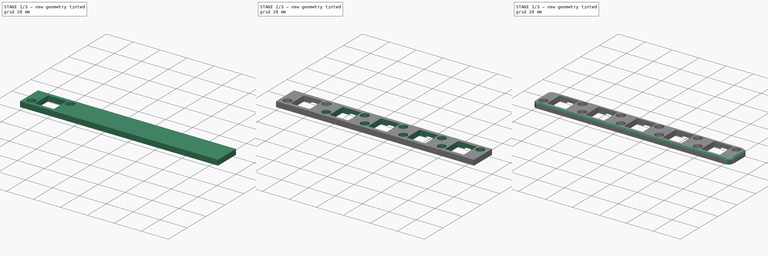
[diagram: build sequence overview — one tinted view per stage of 3, left to right]
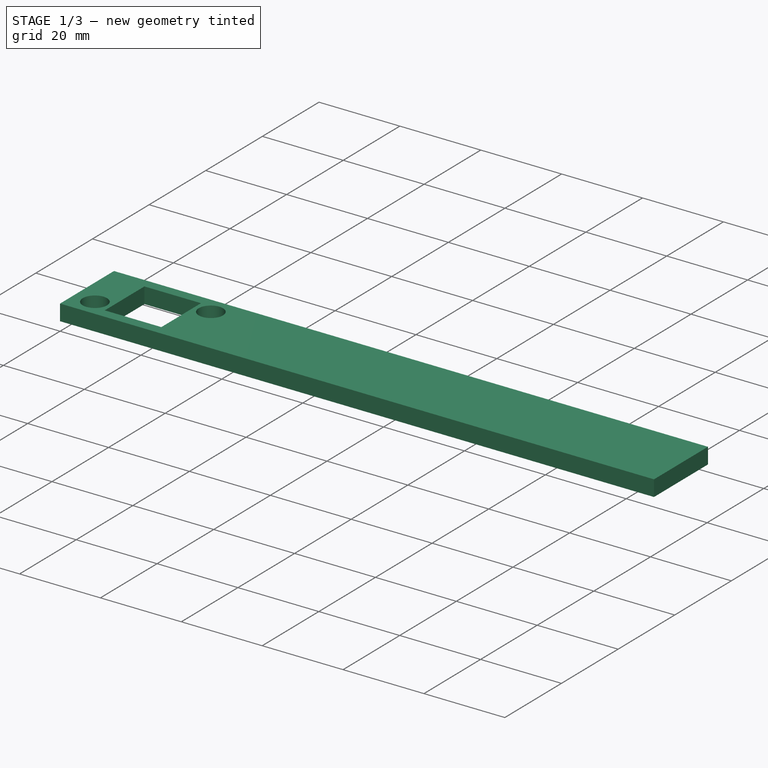
[diagram: stage 1 of 3 — iso view after this stage's code; geometry added in this stage tinted green]
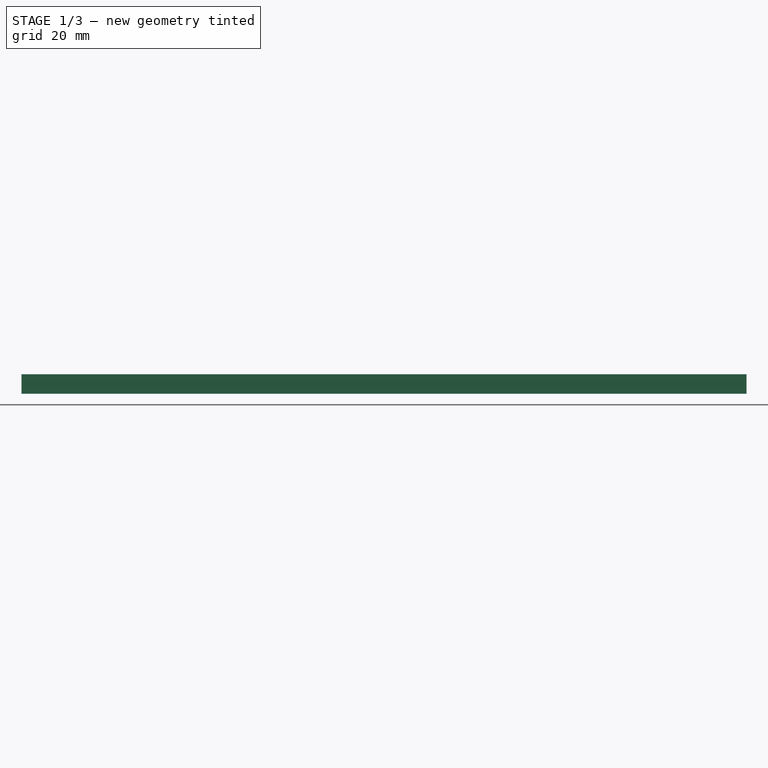
[diagram: stage 1 of 3 — front view after this stage's code; geometry added in this stage tinted green]
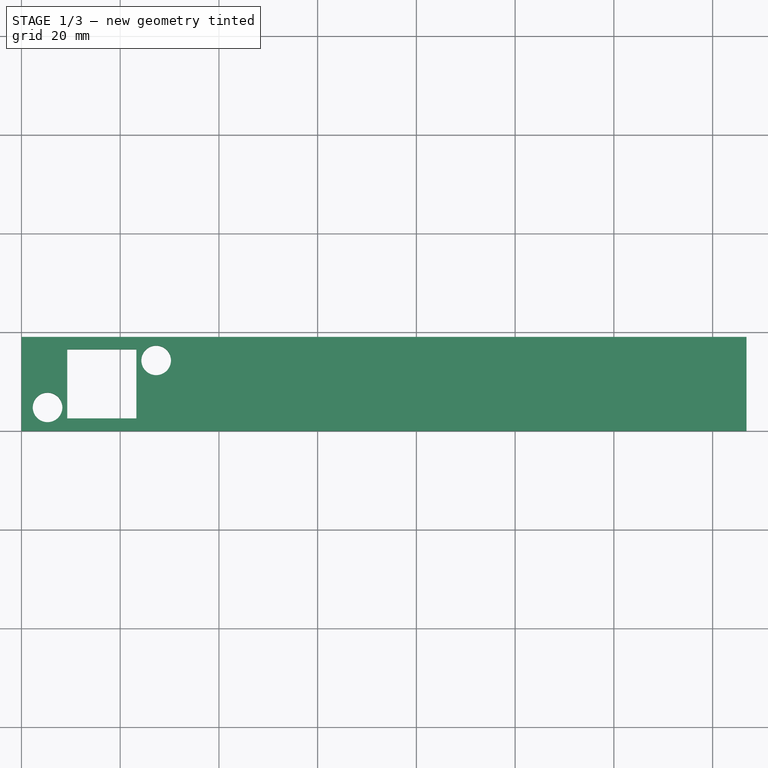
[diagram: stage 1 of 3 — top view after this stage's code; geometry added in this stage tinted green]
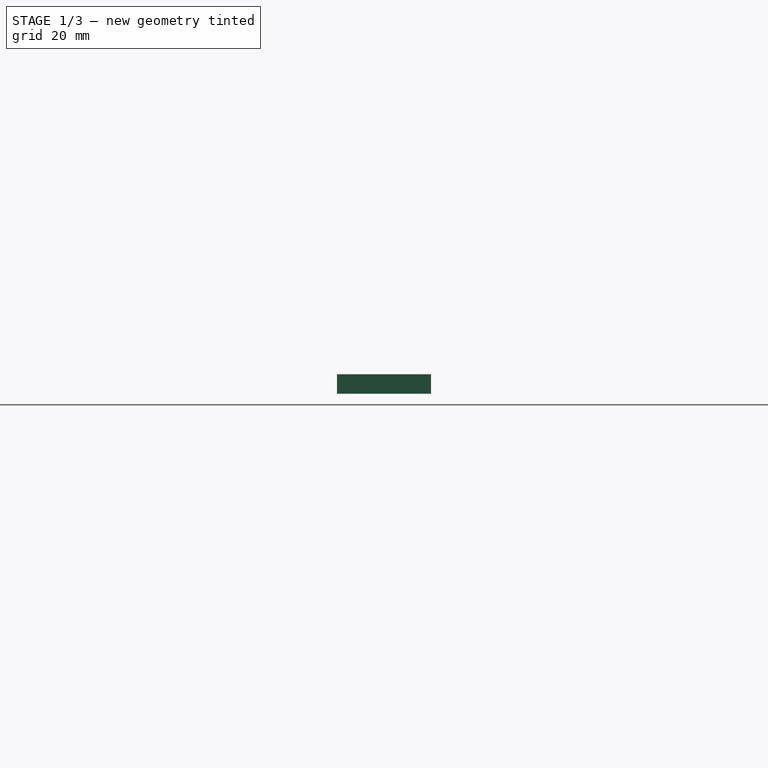
[diagram: stage 1 of 3 — right view after this stage's code; geometry added in this stage tinted green]
FCSTD DOCUMENT  (FreeCAD 0.21R33771 (Git))
Label: LowProPlate
License: All rights reserved
LicenseURL: http://en.wikipedia.org/wiki/All_rights_reserved
objects: Sketcher::SketchObject×2, PartDesign::Pocket×2, PartDesign::FeaturePython×2, PartDesign::AdditiveBox×1, Part::Part2DObjectPython×1, PartDesign::Fillet×1, PartDesign::Chamfer×1, PartDesign::Body×1, App::Part×1
note: 16 computed .brp shape members not serialized (recipe doc carries the construction recipe); baked Part::Feature solids carry a one-line shape summary decoded from their .brp

FEATURE [PartDesign::AdditiveBox] Box  label="BaseBox"
  AttacherType = Attacher::AttachEngine3D
  Height = 3.95
  Length = 146.875
  Width = 19.05
  expr: Length = 19.05 * 1.5 * 5 + 4
FEATURE [Sketcher::SketchObject] Sketch002  label="SingleFootprintSketch"
  ExternalGeometry = -> [Box]
  FullyConstrained = true
  MapMode = 5
  Placement = pos=(0,0,3.95) rot=(0,0,1;0rad)
  Support = -> [Box]
  expr: Constraints[21] = 19.05 * 1.5 / 2 + 2
  sketch-geometry (9):
    g0: LineSegment StartX=9.2875 StartY=16.525 StartZ=0 EndX=23.2875 EndY=16.525 EndZ=0
    g1: LineSegment StartX=23.2875 StartY=16.525 StartZ=0 EndX=23.2875 EndY=2.525 EndZ=0
    g2: LineSegment StartX=23.2875 StartY=2.525 StartZ=0 EndX=9.2875 EndY=2.525 EndZ=0
    g3: LineSegment StartX=9.2875 StartY=2.525 StartZ=0 EndX=9.2875 EndY=16.525 EndZ=0
    g4: GeomPoint X=16.2875 Y=9.525 Z=0
    g5: Circle CenterX=5.2875 CenterY=4.7625 CenterZ=0 NormalX=0 NormalY=0 NormalZ=1 AngleXU=0 Radius=3
    g6: Circle CenterX=27.2875 CenterY=14.2875 CenterZ=0 NormalX=0 NormalY=0 NormalZ=1 AngleXU=0 Radius=3
    g7: LineSegment StartX=0 StartY=19.05 StartZ=0 EndX=16.2875 EndY=9.525 EndZ=0
    g8: LineSegment StartX=16.2875 StartY=9.525 StartZ=0 EndX=0 EndY=0 EndZ=0
  constraints (22):
    c: Coincident(g0,g1)
    c: Coincident(g1,g2)
    c: Coincident(g2,g3)
    c: Coincident(g3,g0)
    c: Horizontal(g0)
    c: Horizontal(g2)
    c: Vertical(g1)
    c: Vertical(g3)
    c: DistanceX(g0,g0) = 14
    c: Symmetric(g2,g0,g4)
    c: Radius(g5) = 3
    c: Equal(g6,g5)
    c: Equal(g0,g1)
    c: Symmetric(g5,g6,g4)
    c: DistanceY(g4,g6) = 4.7625
    c: DistanceX(g4,g6) = 11
    c: Coincident(g7,g-3)
    c: Coincident(g7,g4)
    c: Coincident(g8,g4)
    c: Coincident(g8,g-1)
    c: Equal(g8,g7)
    c: DistanceX(g8,g4) = 16.2875
FEATURE [Part::Part2DObjectPython] LinearArray  label="FootprintArray"  # Draft 2D object (typed FeaturePython)
  Alignment = 0
  AttacherType = Attacher::AttachEngine3D
  CellStart = A1
  Count = 5
  Dir = (1,0,0)
  DirIsDriven = true
  DistributionLaw = 0
  DrivenProperty = 1
  EndInclusive = true
  ExposePlacement = false
  GeneratorMode = 1
  Link = -> Box
  LinkSubelement = Edge10
  MarkerShape = 1
  MarkerSize = 0
  NumElements = 5
  OrientMode = 1
  Point = (0,0,3.95)
  PointIsDriven = true
  Reverse = false
  SpanEnd = 146.875
  SpanStart = 0
  Step = 28.575
  SubLink = -> Box [Edge10]
  Type = lattice2LinearArray.LinearArray
  VSGVersion = 1
  Values = 0.0 | 28.575000000000003 | 57.150000000000006 | 85.72500000000001 | 114.30000000000001
  ValuesSource = 2
  isLattice = 1
  expr: Step = 19.05 * 1.5
FEATURE [PartDesign::Pocket] Pocket001  label="FootprintPocket"
  BaseFeature = -> Box
  Direction = (0,0,-1)
  Length = 5
  Length2 = 5
  Profile = -> Sketch002
  ReferenceAxis = -> Sketch002 [N_Axis]
  Type = 1
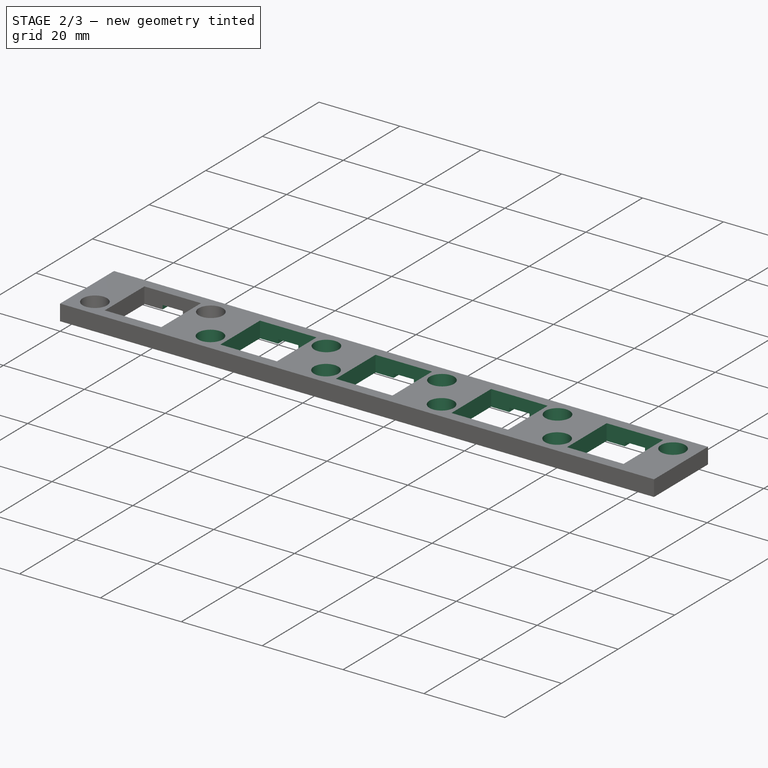
[diagram: stage 2 of 3 — iso view after this stage's code; geometry added in this stage tinted green]
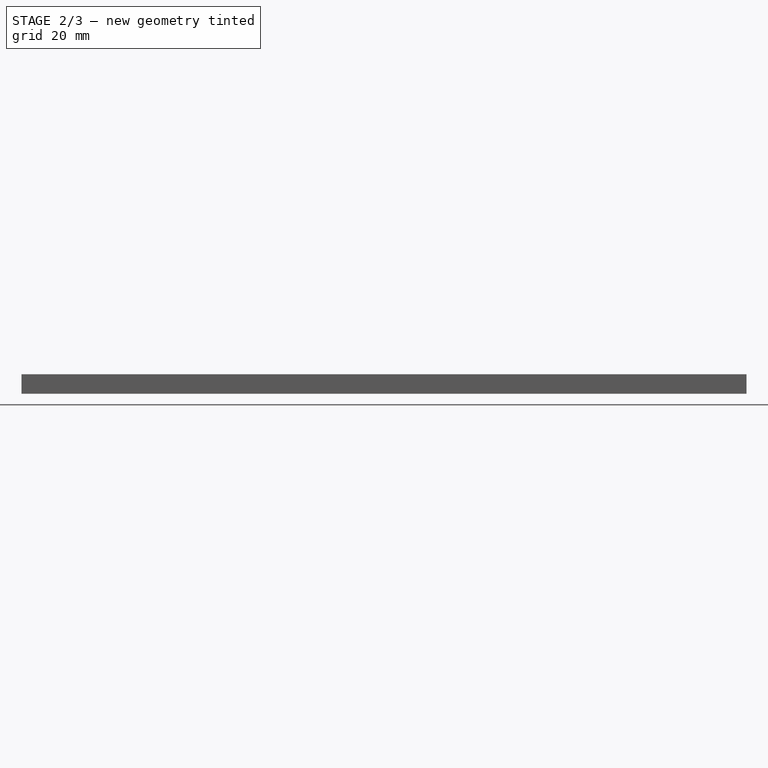
[diagram: stage 2 of 3 — front view after this stage's code; geometry added in this stage tinted green]
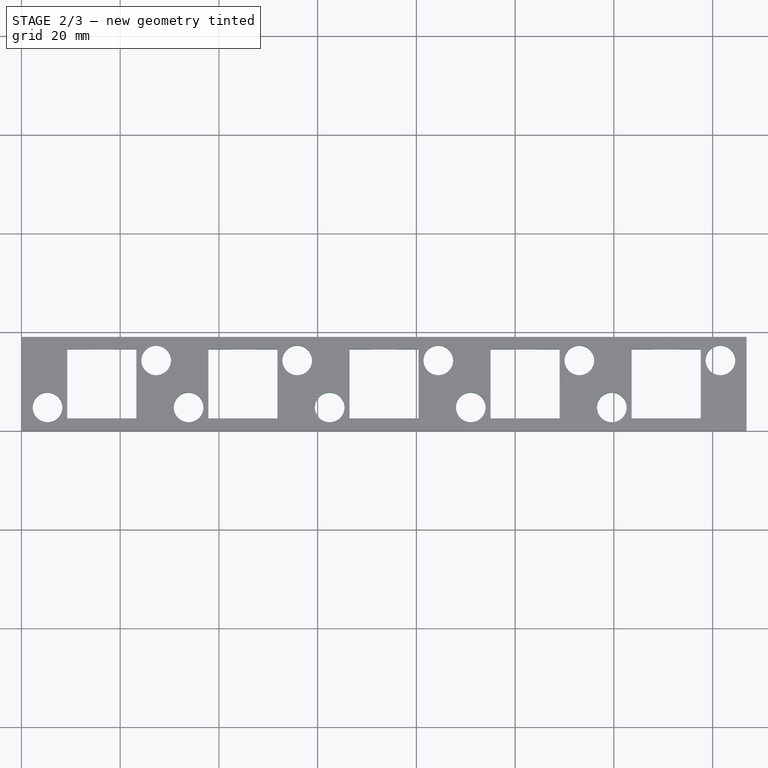
[diagram: stage 2 of 3 — top view after this stage's code; geometry added in this stage tinted green]
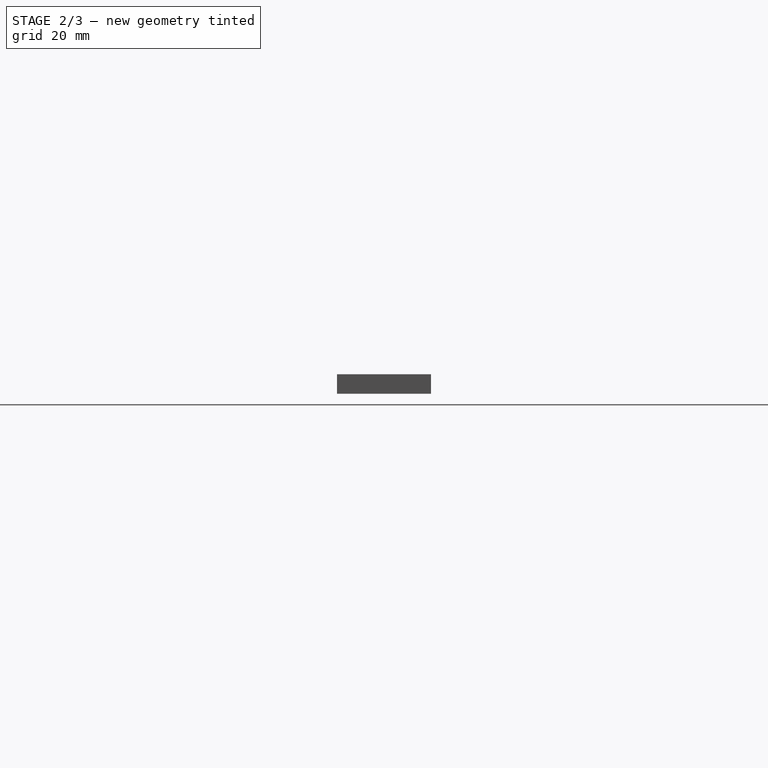
[diagram: stage 2 of 3 — right view after this stage's code; geometry added in this stage tinted green]
FEATURE [PartDesign::FeaturePython] LatticePattern  label="Footprints"  # WARN: FeaturePython — macro-defined, semantics opaque (R4)
  BaseFeature = -> Pocket001
  FeaturesToCopy = -> [Pocket001]
  IgnoreUnsupported = false
  PlacementsTo = -> LinearArray
  Referencing = 1
  Selfintersections = false
  SignOverride = 0
  SkipFirstInBody = false
FEATURE [Sketcher::SketchObject] Sketch004  label="ResistorHousesSketch"
  ExternalGeometry = -> [LatticePattern]
  FullyConstrained = true
  MapMode = 5
  Placement = pos=(0,0,0) rot=(1,0,0;3.14159rad)
  Support = -> [Box]
  sketch-geometry (4):
    g0: LineSegment StartX=13.7875 StartY=-16.525 StartZ=0 EndX=18.7875 EndY=-16.525 EndZ=0
    g1: LineSegment StartX=18.7875 StartY=-16.525 StartZ=0 EndX=18.7875 EndY=-19.05 EndZ=0
    g2: LineSegment StartX=18.7875 StartY=-19.05 StartZ=0 EndX=13.7875 EndY=-19.05 EndZ=0
    g3: LineSegment StartX=13.7875 StartY=-19.05 StartZ=0 EndX=13.7875 EndY=-16.525 EndZ=0
  constraints (12):
    c: Coincident(g0,g1)
    c: Coincident(g1,g2)
    c: Coincident(g2,g3)
    c: Coincident(g3,g0)
    c: Horizontal(g0)
    c: Horizontal(g2)
    c: Vertical(g1)
    c: Vertical(g3)
    c: DistanceX(g2,g2) = 5
    c: DistanceX(g-3,g0) = 4.5
    c: Horizontal(g-3,g0)
    c: Horizontal(g-4,g2)
FEATURE [PartDesign::Pocket] Pocket  label="ResistorPocket"
  BaseFeature = -> LatticePattern
  Direction = (0,0,1)
  Length = 1
  Length2 = 5
  Profile = -> Sketch004
  ReferenceAxis = -> Sketch004 [N_Axis]
  Type = 0
FEATURE [PartDesign::FeaturePython] LatticePattern001  label="ResistorPockets"  # WARN: FeaturePython — macro-defined, semantics opaque (R4)
  BaseFeature = -> Pocket
  FeaturesToCopy = -> [Pocket]
  IgnoreUnsupported = false
  PlacementsTo = -> LinearArray
  Referencing = 1
  Selfintersections = false
  SignOverride = 0
  SkipFirstInBody = false
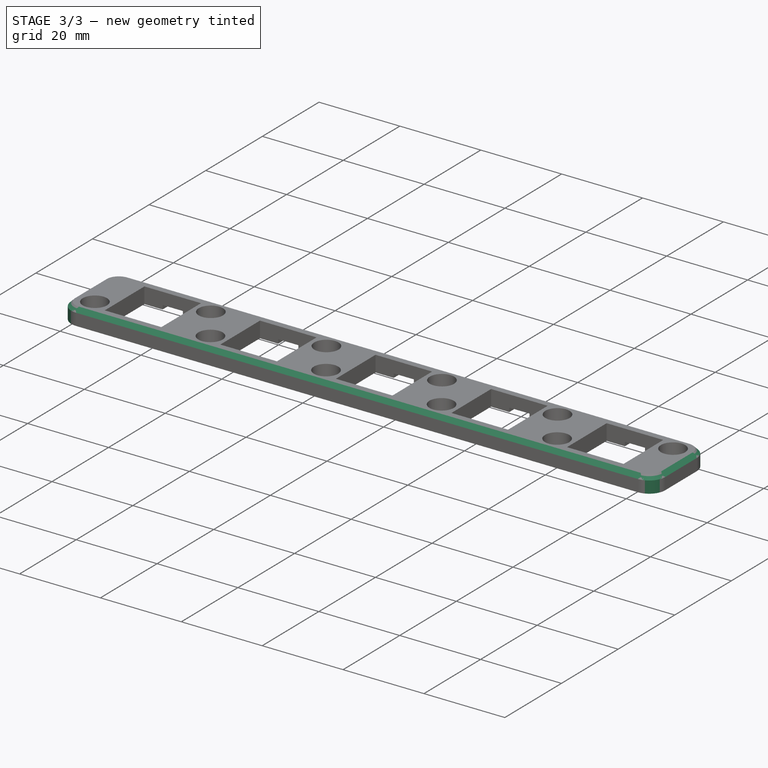
[diagram: stage 3 of 3 — iso view after this stage's code; geometry added in this stage tinted green]
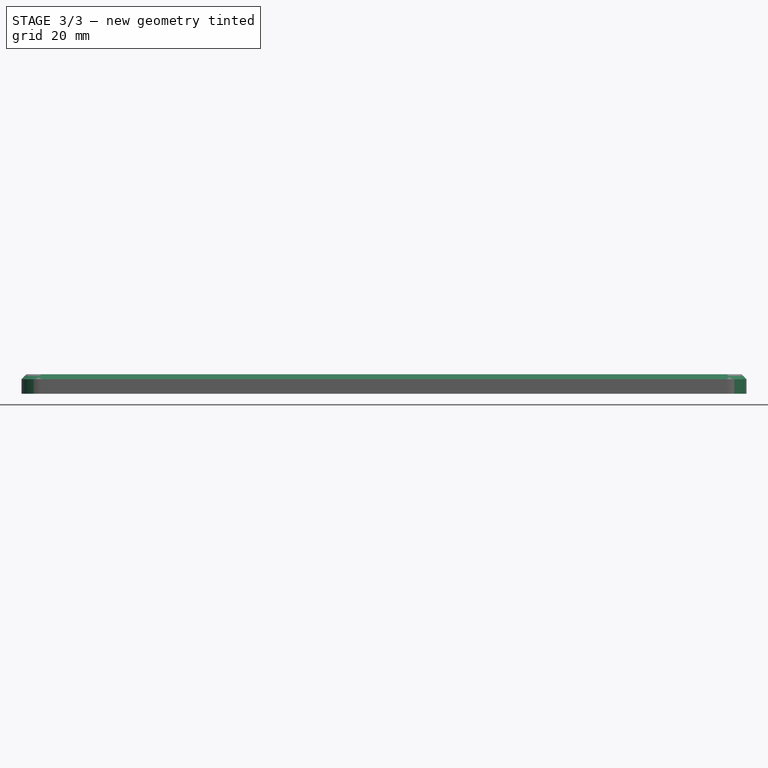
[diagram: stage 3 of 3 — front view after this stage's code; geometry added in this stage tinted green]
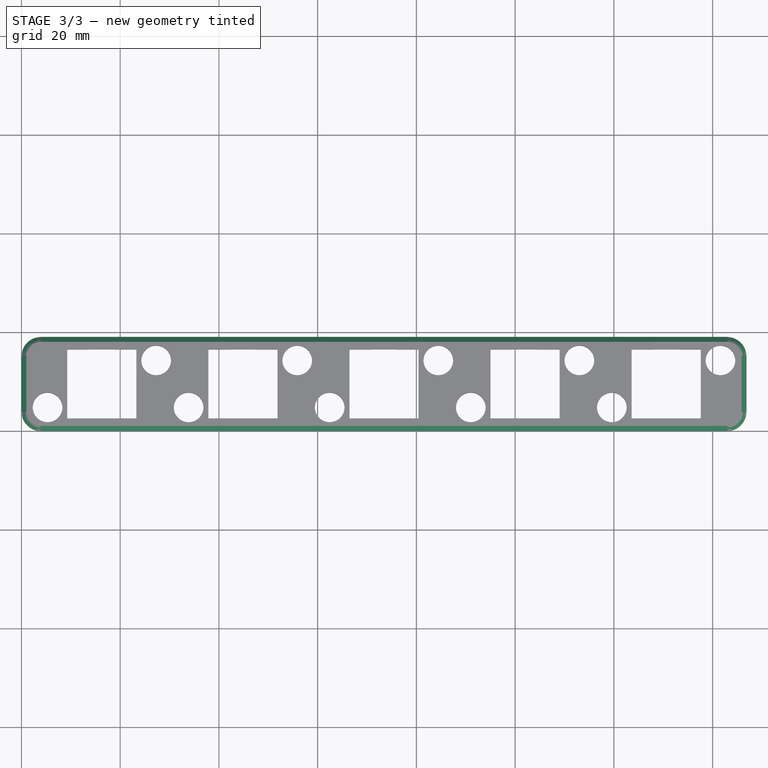
[diagram: stage 3 of 3 — top view after this stage's code; geometry added in this stage tinted green]
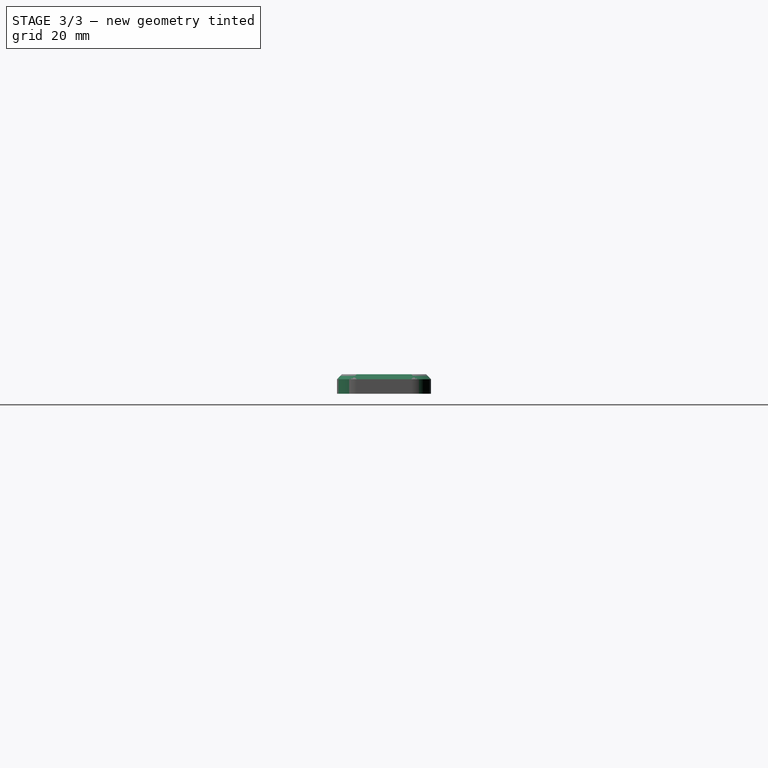
[diagram: stage 3 of 3 — right view after this stage's code; geometry added in this stage tinted green]
FEATURE [PartDesign::Fillet] Fillet
  Base = -> LatticePattern001 [Edge3,Edge1,Edge6,Edge61]
  BaseFeature = -> LatticePattern001
  Radius = 4
  SupportTransform = false
  UseAllEdges = false
FEATURE [PartDesign::Chamfer] Chamfer
  Angle = 45
  Base = -> Fillet [Edge8]
  BaseFeature = -> Fillet
  ChamferType = 0
  FlipDirection = false
  Size = 1
  Size2 = 1
  SupportTransform = false
  UseAllEdges = false
FEATURE [PartDesign::Body] Body001  label="LowProPlateBody"
  Group = -> [Box,Sketch002,LinearArray,Pocket001,LatticePattern,Sketch004,Pocket,LatticePattern001,Fillet,Chamfer]
  Origin = -> Origin003
  Tip = -> Chamfer
FEATURE [App::Part] Part001  label="LowProPlate"
  Group = -> [Body001]
  Origin = -> Origin002
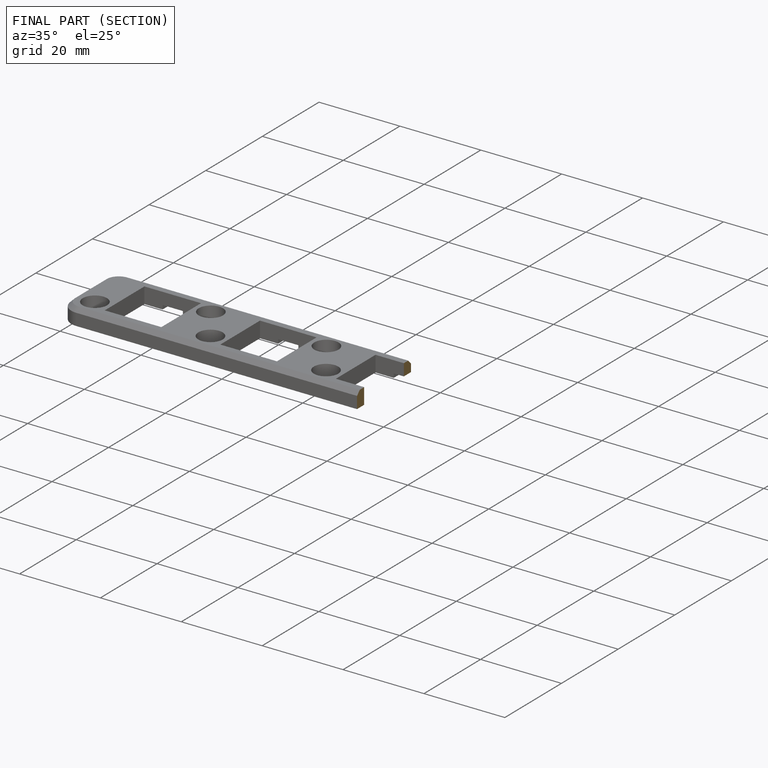
[diagram: finished part — half-section view (interior)]
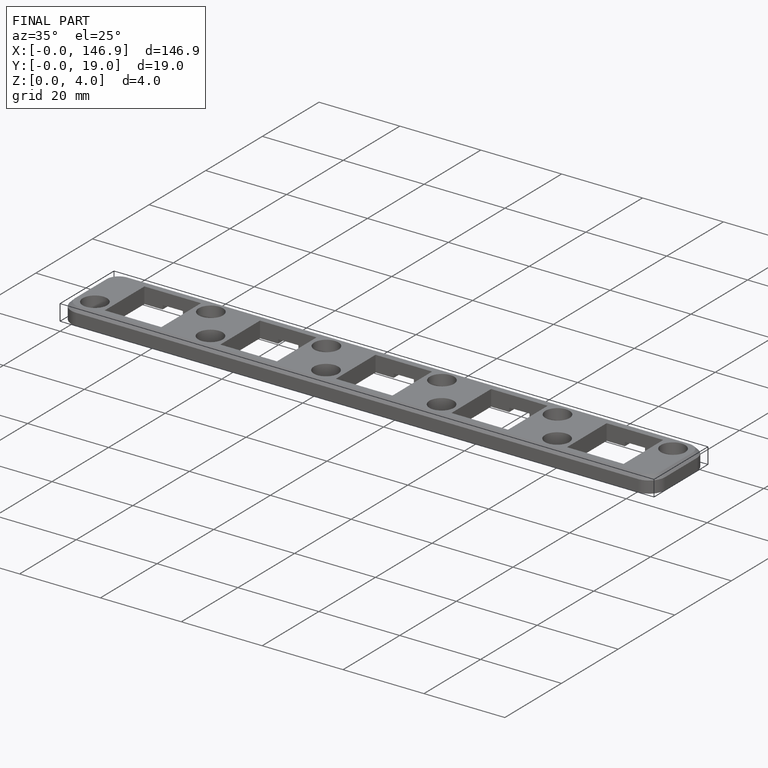
[diagram: finished part — iso view with bounding-box wireframe]
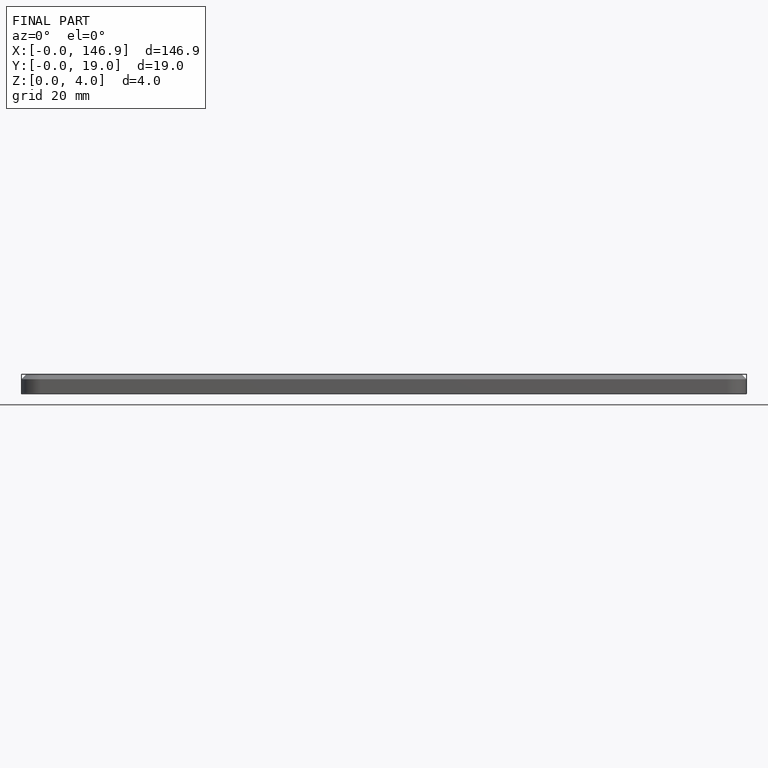
[diagram: finished part — front view with bounding-box wireframe]
